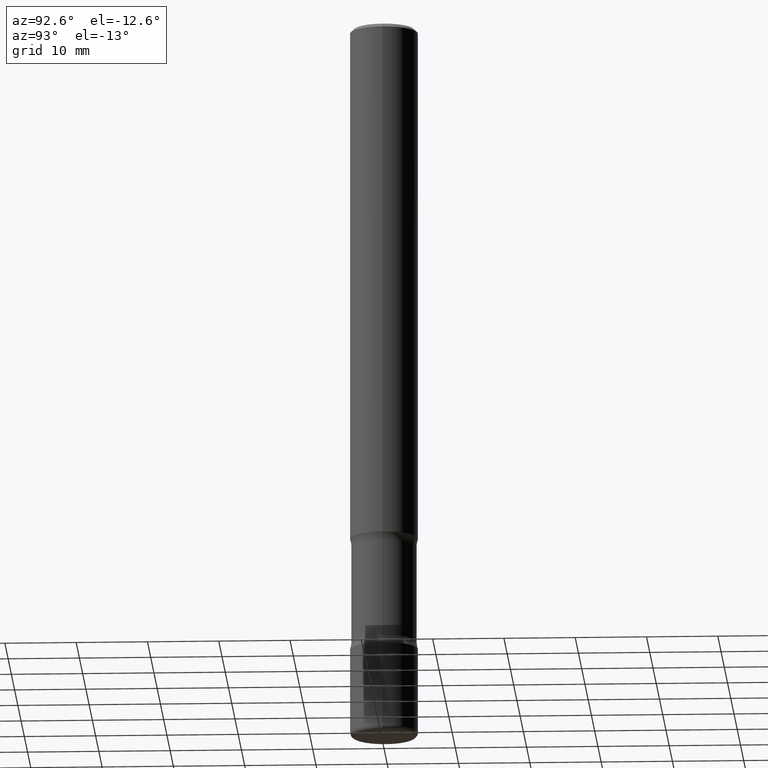
[diagram: clean part render]
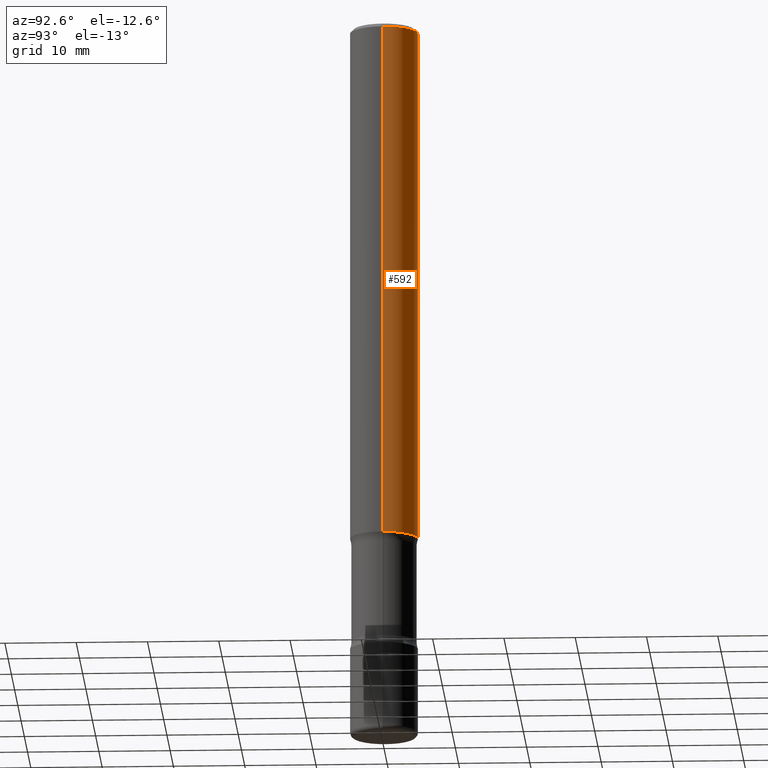
[diagram: same view with one face highlighted and labeled with its STEP entity id]
A machine part, auxiliary view. The second image highlights one B-rep face of the part: STEP entity #592.
In plain terms, the highlighted cylindrical surface (edge-blend (fillet) strip) has radius 4.7625 mm, axis along (-0, 0, 1).
Its self-contained STEP definition (entity closure, byte-faithful):
#30 = DIRECTION ( 'NONE',  ( -2.445468806185136597E-29, 3.491481338843145583E-15, 1.000000000000000000 ) ) ;
#38 = VERTEX_POINT ( 'NONE', #699 ) ;
#44 = ORIENTED_EDGE ( 'NONE', *, *, #575, .F. ) ;
#75 = EDGE_CURVE ( 'NONE', #729, #116, #638, .T. ) ;
#89 = ORIENTED_EDGE ( 'NONE', *, *, #363, .F. ) ;
#100 = DIRECTION ( 'NONE',  ( -2.445468806185136877E-29, 3.491481338843145188E-15, 1.000000000000000000 ) ) ;
#116 = VERTEX_POINT ( 'NONE', #122 ) ;
#117 = AXIS2_PLACEMENT_3D ( 'NONE', #125, #193, #308 ) ;
#122 = CARTESIAN_POINT ( 'NONE',  ( -0.1874999999999999722, -3.721651608425263776E-15, -2.875000000000000000 ) ) ;
#125 = CARTESIAN_POINT ( 'NONE',  ( 4.890937612370283668E-31, -6.982962677686305168E-17, -0.02000000000000004205 ) ) ;
#193 = DIRECTION ( 'NONE',  ( -2.445468806185136597E-29, 3.491481338843145583E-15, 1.000000000000000000 ) ) ;
#212 = VECTOR ( 'NONE', #100, 39.37007874015748143 ) ;
#218 = CARTESIAN_POINT ( 'NONE',  ( -0.1874999999999999167, 1.332267629550187257E-15, -9.223003294227943787E-30 ) ) ;
#264 = DIRECTION ( 'NONE',  ( 1.000000000000000000, -6.982962677686261189E-15, 0.000000000000000000 ) ) ;
#271 = LINE ( 'NONE', #218, #387 ) ;
#308 = DIRECTION ( 'NONE',  ( 1.000000000000000000, -6.982962677686265133E-15, 0.000000000000000000 ) ) ;
#337 = CARTESIAN_POINT ( 'NONE',  ( 0.1875000000000000278, -1.134731435124021811E-14, -2.875000000000000000 ) ) ;
#363 = EDGE_CURVE ( 'NONE', #729, #564, #368, .T. ) ;
#368 = LINE ( 'NONE', #794, #212 ) ;
#384 = CARTESIAN_POINT ( 'NONE',  ( 7.030722817782267716E-29, -1.003800884917404311E-14, -2.875000000000000000 ) ) ;
#387 = VECTOR ( 'NONE', #394, 39.37007874015748143 ) ;
#394 = DIRECTION ( 'NONE',  ( -2.445468806185136877E-29, 3.491481338843145188E-15, 1.000000000000000000 ) ) ;
#498 = ORIENTED_EDGE ( 'NONE', *, *, #75, .T. ) ;
#510 = DIRECTION ( 'NONE',  ( -2.445468806185136597E-29, 3.491481338843145583E-15, 1.000000000000000000 ) ) ;
#527 = ORIENTED_EDGE ( 'NONE', *, *, #668, .T. ) ;
#564 = VERTEX_POINT ( 'NONE', #708 ) ;
#575 = EDGE_CURVE ( 'NONE', #564, #38, #707, .T. ) ;
#592 = ADVANCED_FACE ( 'NONE', ( #660 ), #724, .T. ) ;
#638 = CIRCLE ( 'NONE', #674, 0.1875000000000000278 ) ;
#647 = DIRECTION ( 'NONE',  ( 1.000000000000000000, -6.982962677686265922E-15, 4.876176775795935793E-29 ) ) ;
#660 = FACE_OUTER_BOUND ( 'NONE', #672, .T. ) ;
#668 = EDGE_CURVE ( 'NONE', #116, #38, #271, .T. ) ;
#672 = EDGE_LOOP ( 'NONE', ( #498, #527, #44, #89 ) ) ;
#674 = AXIS2_PLACEMENT_3D ( 'NONE', #384, #510, #264 ) ;
#699 = CARTESIAN_POINT ( 'NONE',  ( -0.1874999999999997780, 1.239475875289310330E-15, -0.02000000000000004205 ) ) ;
#707 = CIRCLE ( 'NONE', #117, 0.1874999999999997780 ) ;
#708 = CARTESIAN_POINT ( 'NONE',  ( 0.1874999999999997780, -1.356173001359023691E-15, -0.02000000000000004205 ) ) ;
#724 = CYLINDRICAL_SURFACE ( 'NONE', #763, 0.1874999999999999167 ) ;
#729 = VERTEX_POINT ( 'NONE', #337 ) ;
#763 = AXIS2_PLACEMENT_3D ( 'NONE', #772, #30, #647 ) ;
#772 = CARTESIAN_POINT ( 'NONE',  ( 0.000000000000000000, 0.000000000000000000, 0.000000000000000000 ) ) ;
#794 = CARTESIAN_POINT ( 'NONE',  ( 0.1874999999999999167, -1.309305502066174219E-15, 9.142831454617375408E-30 ) ) ;